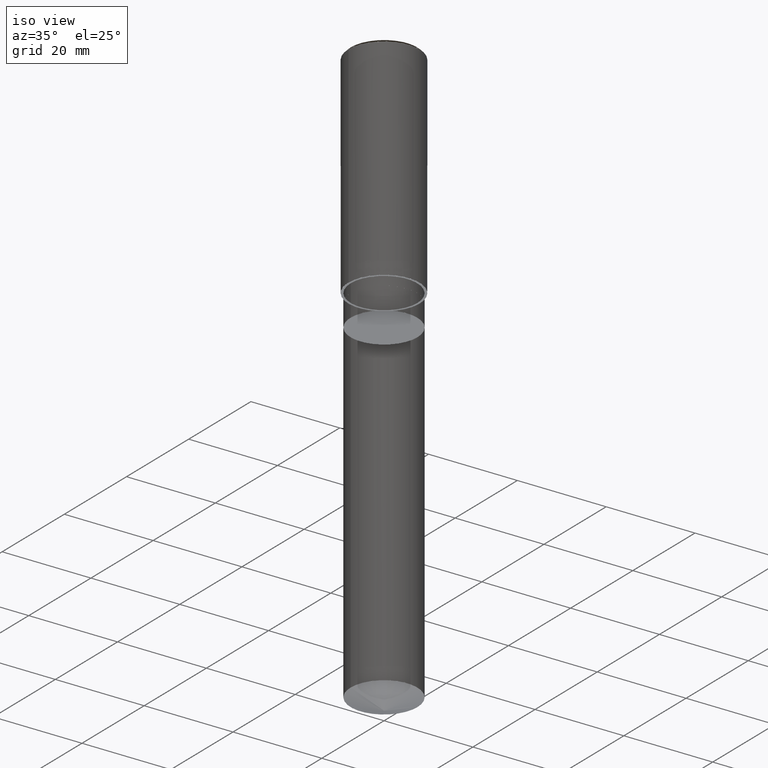
[diagram: clean part render]
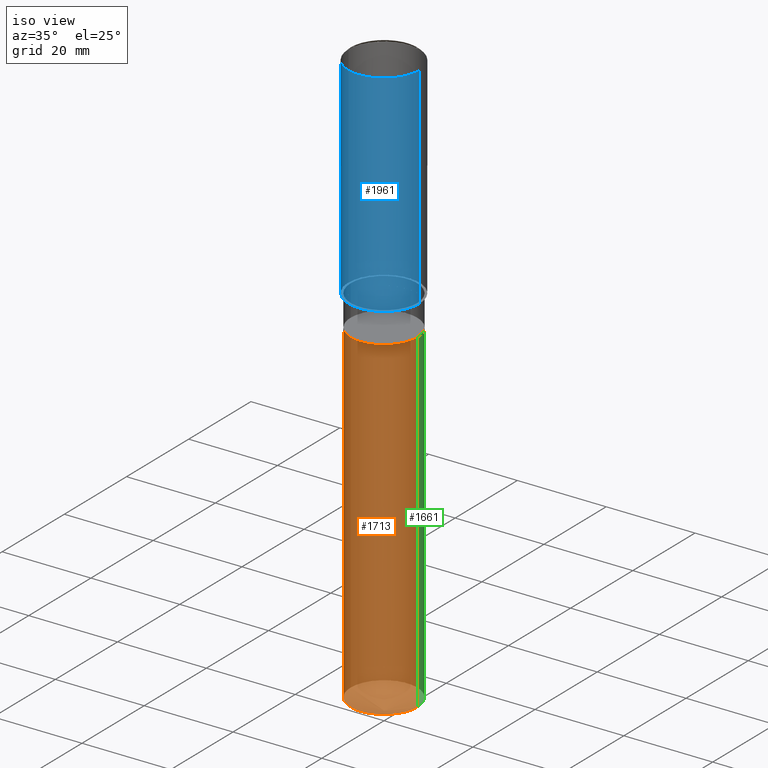
[diagram: same view with three faces highlighted in distinct colors, each labeled with its STEP entity id]
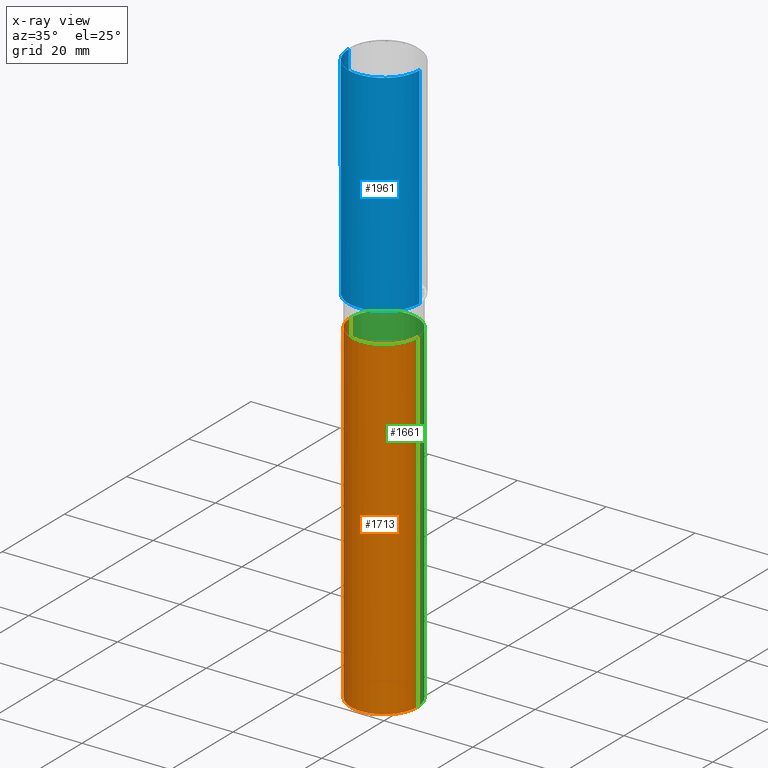
[diagram: x-ray of the same camera — body ghosted, the three highlighted faces saturated]
A machine part, iso view with three faces highlighted in distinct colors.
The next image is the same camera in x-ray (body ghosted, the three faces saturated) — at least one of them is partly hidden behind the body in this view.
Their STEP definitions:

[orange] entity #1713 — the highlighted face is a freeform B-spline surface patch.
#1563=CARTESIAN_POINT('',(7.5,0.0,-82.270223243003));
#1567=CARTESIAN_POINT('',(-7.5,0.0,-82.270223243003));
#1568=CARTESIAN_POINT('',(7.5,0.0,-7.0));
#1572=CARTESIAN_POINT('',(-7.5,0.0,-7.0));
#1574=CARTESIAN_POINT('',(-7.5,-7.5,-82.270223243003));
#1575=CARTESIAN_POINT('',(0.0,-7.5,-82.270223243003));
#1576=CARTESIAN_POINT('',(7.5,-7.5,-82.270223243003));
#1577=CARTESIAN_POINT('',(-7.5,-7.5,-7.0));
#1578=CARTESIAN_POINT('',(0.0,-7.5,-7.0));
#1579=CARTESIAN_POINT('',(7.5,-7.5,-7.0));
#1694=(
BOUNDED_SURFACE()
B_SPLINE_SURFACE(1,2,(
(#1567,#1574,#1575,#1576,#1563),
(#1572,#1577,#1578,#1579,#1568)
), .UNSPECIFIED.,.F.,.F.,.F.)
B_SPLINE_SURFACE_WITH_KNOTS((2,2),(3,2,3),(
0.0,1.0),(
0.0,0.5,1.0), .UNSPECIFIED.)
GEOMETRIC_REPRESENTATION_ITEM()
RATIONAL_B_SPLINE_SURFACE(((1.0,0.707106781187,1.0,0.707106781187,1.0),
(1.0,0.707106781187,1.0,0.707106781187,1.0)
))
REPRESENTATION_ITEM('')
SURFACE()
);
#1695=(
BOUNDED_CURVE()
B_SPLINE_CURVE(2,(#1563,#1576,#1575,#1574,#1567),.UNSPECIFIED.,.F.,.F.)
B_SPLINE_CURVE_WITH_KNOTS((3,2,3),
(0.0,0.5,1.0),.UNSPECIFIED.)
CURVE()
GEOMETRIC_REPRESENTATION_ITEM()
RATIONAL_B_SPLINE_CURVE((1.0,0.707106781187,1.0,0.707106781187,1.0))
REPRESENTATION_ITEM('')
);
#1696=(
BOUNDED_CURVE()
B_SPLINE_CURVE(1,(#1567,#1572),.UNSPECIFIED.,.F.,.F.)
B_SPLINE_CURVE_WITH_KNOTS((2,2),
(0.0,1.0),.UNSPECIFIED.)
CURVE()
GEOMETRIC_REPRESENTATION_ITEM()
RATIONAL_B_SPLINE_CURVE((1.0,1.0))
REPRESENTATION_ITEM('')
);
#1697=(
BOUNDED_CURVE()
B_SPLINE_CURVE(2,(#1572,#1577,#1578,#1579,#1568),.UNSPECIFIED.,.F.,.F.)
B_SPLINE_CURVE_WITH_KNOTS((3,2,3),
(0.0,0.5,1.0),.UNSPECIFIED.)
CURVE()
GEOMETRIC_REPRESENTATION_ITEM()
RATIONAL_B_SPLINE_CURVE((1.0,0.707106781187,1.0,0.707106781187,1.0))
REPRESENTATION_ITEM('')
);
#1698=(
BOUNDED_CURVE()
B_SPLINE_CURVE(1,(#1568,#1563),.UNSPECIFIED.,.F.,.F.)
B_SPLINE_CURVE_WITH_KNOTS((2,2),
(0.0,1.0),.UNSPECIFIED.)
CURVE()
GEOMETRIC_REPRESENTATION_ITEM()
RATIONAL_B_SPLINE_CURVE((1.0,1.0))
REPRESENTATION_ITEM('')
);
#1699=VERTEX_POINT('',#1563);
#1700=VERTEX_POINT('',#1567);
#1701=VERTEX_POINT('',#1568);
#1702=VERTEX_POINT('',#1572);
#1703=EDGE_CURVE('',#1699,#1700,#1695,.T.);
#1704=EDGE_CURVE('',#1700,#1702,#1696,.T.);
#1705=EDGE_CURVE('',#1702,#1701,#1697,.T.);
#1706=EDGE_CURVE('',#1701,#1699,#1698,.T.);
#1707=ORIENTED_EDGE('',*,*,#1703,.T.);
#1708=ORIENTED_EDGE('',*,*,#1704,.T.);
#1709=ORIENTED_EDGE('',*,*,#1705,.T.);
#1710=ORIENTED_EDGE('',*,*,#1706,.T.);
#1711=EDGE_LOOP('',(#1707,#1708,#1709,#1710));
#1712=FACE_OUTER_BOUND('',#1711,.T.);
#1713=ADVANCED_FACE('',(#1712),#1694,.T.);

[blue] entity #1961 — the highlighted face is a freeform B-spline surface patch.
#1590=CARTESIAN_POINT('',(8.0,0.0,0.0));
#1594=CARTESIAN_POINT('',(-8.0,0.0,0.0));
#1595=CARTESIAN_POINT('',(8.0,0.0,47.5));
#1599=CARTESIAN_POINT('',(-8.0,0.0,47.5));
#1612=CARTESIAN_POINT('',(-8.0,-8.0,0.0));
#1613=CARTESIAN_POINT('',(0.0,-8.0,0.0));
#1614=CARTESIAN_POINT('',(8.0,-8.0,0.0));
#1615=CARTESIAN_POINT('',(-8.0,-8.0,47.5));
#1616=CARTESIAN_POINT('',(0.0,-8.0,47.5));
#1617=CARTESIAN_POINT('',(8.0,-8.0,47.5));
#1942=(
BOUNDED_SURFACE()
B_SPLINE_SURFACE(1,2,(
(#1594,#1612,#1613,#1614,#1590),
(#1599,#1615,#1616,#1617,#1595)
), .UNSPECIFIED.,.F.,.F.,.F.)
B_SPLINE_SURFACE_WITH_KNOTS((2,2),(3,2,3),(
0.0,1.0),(
0.0,0.5,1.0), .UNSPECIFIED.)
GEOMETRIC_REPRESENTATION_ITEM()
RATIONAL_B_SPLINE_SURFACE(((1.0,0.707106781187,1.0,0.707106781187,1.0),
(1.0,0.707106781187,1.0,0.707106781187,1.0)
))
REPRESENTATION_ITEM('')
SURFACE()
);
#1943=(
BOUNDED_CURVE()
B_SPLINE_CURVE(2,(#1590,#1614,#1613,#1612,#1594),.UNSPECIFIED.,.F.,.F.)
B_SPLINE_CURVE_WITH_KNOTS((3,2,3),
(0.0,0.5,1.0),.UNSPECIFIED.)
CURVE()
GEOMETRIC_REPRESENTATION_ITEM()
RATIONAL_B_SPLINE_CURVE((1.0,0.707106781187,1.0,0.707106781187,1.0))
REPRESENTATION_ITEM('')
);
#1944=(
BOUNDED_CURVE()
B_SPLINE_CURVE(1,(#1594,#1599),.UNSPECIFIED.,.F.,.F.)
B_SPLINE_CURVE_WITH_KNOTS((2,2),
(0.0,1.0),.UNSPECIFIED.)
CURVE()
GEOMETRIC_REPRESENTATION_ITEM()
RATIONAL_B_SPLINE_CURVE((1.0,1.0))
REPRESENTATION_ITEM('')
);
#1945=(
BOUNDED_CURVE()
B_SPLINE_CURVE(2,(#1599,#1615,#1616,#1617,#1595),.UNSPECIFIED.,.F.,.F.)
B_SPLINE_CURVE_WITH_KNOTS((3,2,3),
(0.0,0.5,1.0),.UNSPECIFIED.)
CURVE()
GEOMETRIC_REPRESENTATION_ITEM()
RATIONAL_B_SPLINE_CURVE((1.0,0.707106781187,1.0,0.707106781187,1.0))
REPRESENTATION_ITEM('')
);
#1946=(
BOUNDED_CURVE()
B_SPLINE_CURVE(1,(#1595,#1590),.UNSPECIFIED.,.F.,.F.)
B_SPLINE_CURVE_WITH_KNOTS((2,2),
(0.0,1.0),.UNSPECIFIED.)
CURVE()
GEOMETRIC_REPRESENTATION_ITEM()
RATIONAL_B_SPLINE_CURVE((1.0,1.0))
REPRESENTATION_ITEM('')
);
#1947=VERTEX_POINT('',#1590);
#1948=VERTEX_POINT('',#1594);
#1949=VERTEX_POINT('',#1595);
#1950=VERTEX_POINT('',#1599);
#1951=EDGE_CURVE('',#1947,#1948,#1943,.T.);
#1952=EDGE_CURVE('',#1948,#1950,#1944,.T.);
#1953=EDGE_CURVE('',#1950,#1949,#1945,.T.);
#1954=EDGE_CURVE('',#1949,#1947,#1946,.T.);
#1955=ORIENTED_EDGE('',*,*,#1951,.T.);
#1956=ORIENTED_EDGE('',*,*,#1952,.T.);
#1957=ORIENTED_EDGE('',*,*,#1953,.T.);
#1958=ORIENTED_EDGE('',*,*,#1954,.T.);
#1959=EDGE_LOOP('',(#1955,#1956,#1957,#1958));
#1960=FACE_OUTER_BOUND('',#1959,.T.);
#1961=ADVANCED_FACE('',(#1960),#1942,.T.);

[green] entity #1661 — the highlighted face is a freeform B-spline surface patch.
#1563=CARTESIAN_POINT('',(7.5,0.0,-82.270223243003));
#1564=CARTESIAN_POINT('',(7.5,7.5,-82.270223243003));
#1565=CARTESIAN_POINT('',(0.0,7.5,-82.270223243003));
#1566=CARTESIAN_POINT('',(-7.5,7.5,-82.270223243003));
#1567=CARTESIAN_POINT('',(-7.5,0.0,-82.270223243003));
#1568=CARTESIAN_POINT('',(7.5,0.0,-7.0));
#1569=CARTESIAN_POINT('',(7.5,7.5,-7.0));
#1570=CARTESIAN_POINT('',(0.0,7.5,-7.0));
#1571=CARTESIAN_POINT('',(-7.5,7.5,-7.0));
#1572=CARTESIAN_POINT('',(-7.5,0.0,-7.0));
#1642=(
BOUNDED_SURFACE()
B_SPLINE_SURFACE(1,2,(
(#1563,#1564,#1565,#1566,#1567),
(#1568,#1569,#1570,#1571,#1572)
), .UNSPECIFIED.,.F.,.F.,.F.)
B_SPLINE_SURFACE_WITH_KNOTS((2,2),(3,2,3),(
0.0,1.0),(
0.0,0.5,1.0), .UNSPECIFIED.)
GEOMETRIC_REPRESENTATION_ITEM()
RATIONAL_B_SPLINE_SURFACE(((1.0,0.707106781187,1.0,0.707106781187,1.0),
(1.0,0.707106781187,1.0,0.707106781187,1.0)
))
REPRESENTATION_ITEM('')
SURFACE()
);
#1643=(
BOUNDED_CURVE()
B_SPLINE_CURVE(2,(#1567,#1566,#1565,#1564,#1563),.UNSPECIFIED.,.F.,.F.)
B_SPLINE_CURVE_WITH_KNOTS((3,2,3),
(0.0,0.5,1.0),.UNSPECIFIED.)
CURVE()
GEOMETRIC_REPRESENTATION_ITEM()
RATIONAL_B_SPLINE_CURVE((1.0,0.707106781187,1.0,0.707106781187,1.0))
REPRESENTATION_ITEM('')
);
#1644=(
BOUNDED_CURVE()
B_SPLINE_CURVE(1,(#1563,#1568),.UNSPECIFIED.,.F.,.F.)
B_SPLINE_CURVE_WITH_KNOTS((2,2),
(0.0,1.0),.UNSPECIFIED.)
CURVE()
GEOMETRIC_REPRESENTATION_ITEM()
RATIONAL_B_SPLINE_CURVE((1.0,1.0))
REPRESENTATION_ITEM('')
);
#1645=(
BOUNDED_CURVE()
B_SPLINE_CURVE(2,(#1568,#1569,#1570,#1571,#1572),.UNSPECIFIED.,.F.,.F.)
B_SPLINE_CURVE_WITH_KNOTS((3,2,3),
(0.0,0.5,1.0),.UNSPECIFIED.)
CURVE()
GEOMETRIC_REPRESENTATION_ITEM()
RATIONAL_B_SPLINE_CURVE((1.0,0.707106781187,1.0,0.707106781187,1.0))
REPRESENTATION_ITEM('')
);
#1646=(
BOUNDED_CURVE()
B_SPLINE_CURVE(1,(#1572,#1567),.UNSPECIFIED.,.F.,.F.)
B_SPLINE_CURVE_WITH_KNOTS((2,2),
(0.0,1.0),.UNSPECIFIED.)
CURVE()
GEOMETRIC_REPRESENTATION_ITEM()
RATIONAL_B_SPLINE_CURVE((1.0,1.0))
REPRESENTATION_ITEM('')
);
#1647=VERTEX_POINT('',#1563);
#1648=VERTEX_POINT('',#1567);
#1649=VERTEX_POINT('',#1568);
#1650=VERTEX_POINT('',#1572);
#1651=EDGE_CURVE('',#1648,#1647,#1643,.T.);
#1652=EDGE_CURVE('',#1647,#1649,#1644,.T.);
#1653=EDGE_CURVE('',#1649,#1650,#1645,.T.);
#1654=EDGE_CURVE('',#1650,#1648,#1646,.T.);
#1655=ORIENTED_EDGE('',*,*,#1651,.T.);
#1656=ORIENTED_EDGE('',*,*,#1652,.T.);
#1657=ORIENTED_EDGE('',*,*,#1653,.T.);
#1658=ORIENTED_EDGE('',*,*,#1654,.T.);
#1659=EDGE_LOOP('',(#1655,#1656,#1657,#1658));
#1660=FACE_OUTER_BOUND('',#1659,.T.);
#1661=ADVANCED_FACE('',(#1660),#1642,.T.);